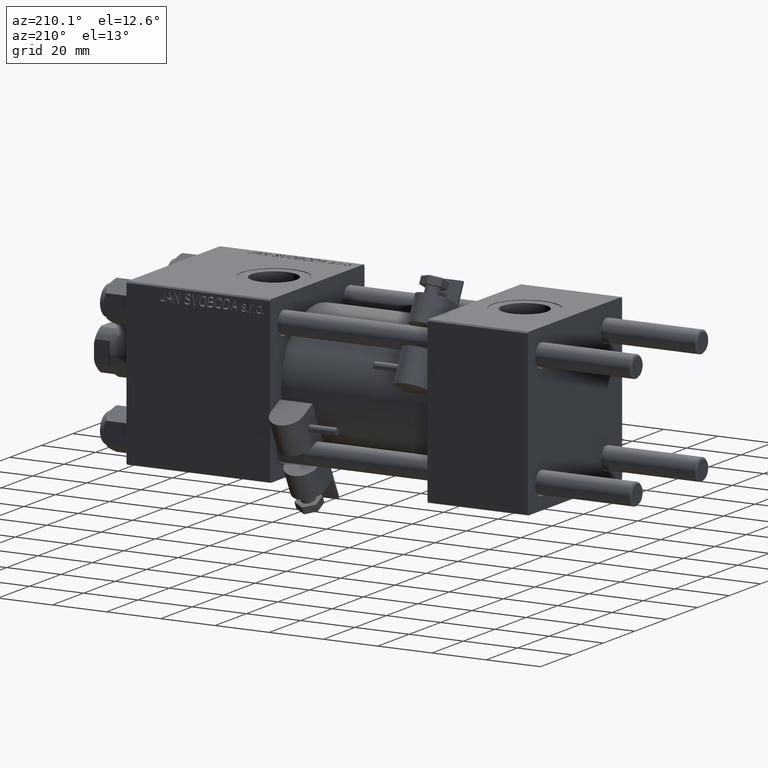
[diagram: clean part render]
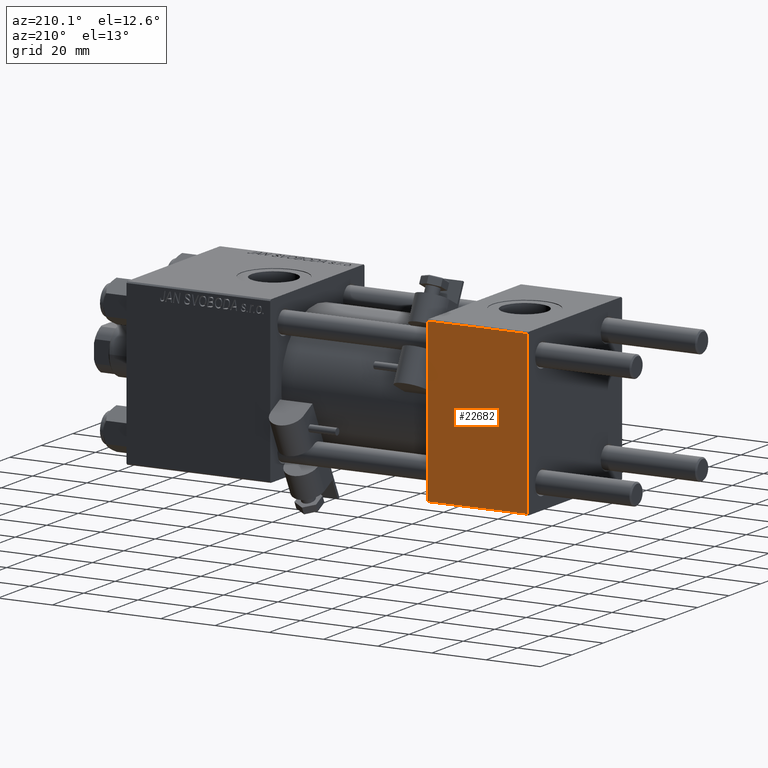
[diagram: same view with one face highlighted and labeled with its STEP entity id]
A machine part, auxiliary view. The second image highlights one B-rep face of the part: STEP entity #22682.
In plain terms, the highlighted planar face has unit normal (0, 1, 0).
Its self-contained STEP definition (entity closure, byte-faithful):
#2341 = ORIENTED_EDGE ( 'NONE', *, *, #29652, .T. ) ;
#2589 = EDGE_LOOP ( 'NONE', ( #2341, #31983, #17850, #35870 ) ) ;
#4194 = VERTEX_POINT ( 'NONE', #47116 ) ;
#6383 = LINE ( 'NONE', #22093, #43624 ) ;
#6808 = CARTESIAN_POINT ( 'NONE',  ( 0.000000000000000000, 29.99999999999999289, -29.50000000000000000 ) ) ;
#7195 = VECTOR ( 'NONE', #34172, 1000.000000000000000 ) ;
#8999 = LINE ( 'NONE', #49155, #32897 ) ;
#9321 = CARTESIAN_POINT ( 'NONE',  ( 0.000000000000000000, 29.99999999999999289, 29.50000000000000000 ) ) ;
#12891 = CARTESIAN_POINT ( 'NONE',  ( 37.00000000000000000, 29.99999999999999289, 30.00000000000000000 ) ) ;
#13401 = DIRECTION ( 'NONE',  ( 0.000000000000000000, -0.000000000000000000, 1.000000000000000000 ) ) ;
#17850 = ORIENTED_EDGE ( 'NONE', *, *, #35848, .F. ) ;
#18431 = EDGE_CURVE ( 'NONE', #47431, #4194, #8999, .T. ) ;
#19507 = LINE ( 'NONE', #31092, #7195 ) ;
#20633 = PLANE ( 'NONE',  #30697 ) ;
#21388 = FACE_OUTER_BOUND ( 'NONE', #2589, .T. ) ;
#22093 = CARTESIAN_POINT ( 'NONE',  ( 37.00000000000000000, 29.99999999999999289, -29.50000000000000000 ) ) ;
#22682 = ADVANCED_FACE ( 'NONE', ( #21388 ), #20633, .T. ) ;
#25533 = VERTEX_POINT ( 'NONE', #27444 ) ;
#27444 = CARTESIAN_POINT ( 'NONE',  ( 37.00000000000000000, 29.99999999999999289, -29.50000000000000000 ) ) ;
#29652 = EDGE_CURVE ( 'NONE', #4194, #25533, #43185, .T. ) ;
#30697 = AXIS2_PLACEMENT_3D ( 'NONE', #12891, #48692, #13401 ) ;
#30836 = CARTESIAN_POINT ( 'NONE',  ( 37.00000000000000000, 29.99999999999999289, 30.00000000000000000 ) ) ;
#31092 = CARTESIAN_POINT ( 'NONE',  ( 0.000000000000000000, 29.99999999999999289, 30.00000000000000000 ) ) ;
#31983 = ORIENTED_EDGE ( 'NONE', *, *, #46873, .T. ) ;
#32897 = VECTOR ( 'NONE', #41169, 1000.000000000000000 ) ;
#34172 = DIRECTION ( 'NONE',  ( 0.000000000000000000, 0.000000000000000000, -1.000000000000000000 ) ) ;
#35848 = EDGE_CURVE ( 'NONE', #47431, #49256, #19507, .T. ) ;
#35870 = ORIENTED_EDGE ( 'NONE', *, *, #18431, .T. ) ;
#41169 = DIRECTION ( 'NONE',  ( 1.000000000000000000, 0.000000000000000000, 0.000000000000000000 ) ) ;
#42419 = DIRECTION ( 'NONE',  ( 0.000000000000000000, 0.000000000000000000, -1.000000000000000000 ) ) ;
#43185 = LINE ( 'NONE', #30836, #48923 ) ;
#43624 = VECTOR ( 'NONE', #48644, 1000.000000000000000 ) ;
#46873 = EDGE_CURVE ( 'NONE', #25533, #49256, #6383, .T. ) ;
#47116 = CARTESIAN_POINT ( 'NONE',  ( 37.00000000000000000, 29.99999999999999289, 29.50000000000000000 ) ) ;
#47431 = VERTEX_POINT ( 'NONE', #9321 ) ;
#48644 = DIRECTION ( 'NONE',  ( -1.000000000000000000, 0.000000000000000000, 0.000000000000000000 ) ) ;
#48692 = DIRECTION ( 'NONE',  ( -0.000000000000000000, 1.000000000000000000, 0.000000000000000000 ) ) ;
#48923 = VECTOR ( 'NONE', #42419, 1000.000000000000000 ) ;
#49155 = CARTESIAN_POINT ( 'NONE',  ( 37.00000000000000000, 29.99999999999999289, 29.50000000000000000 ) ) ;
#49256 = VERTEX_POINT ( 'NONE', #6808 ) ;